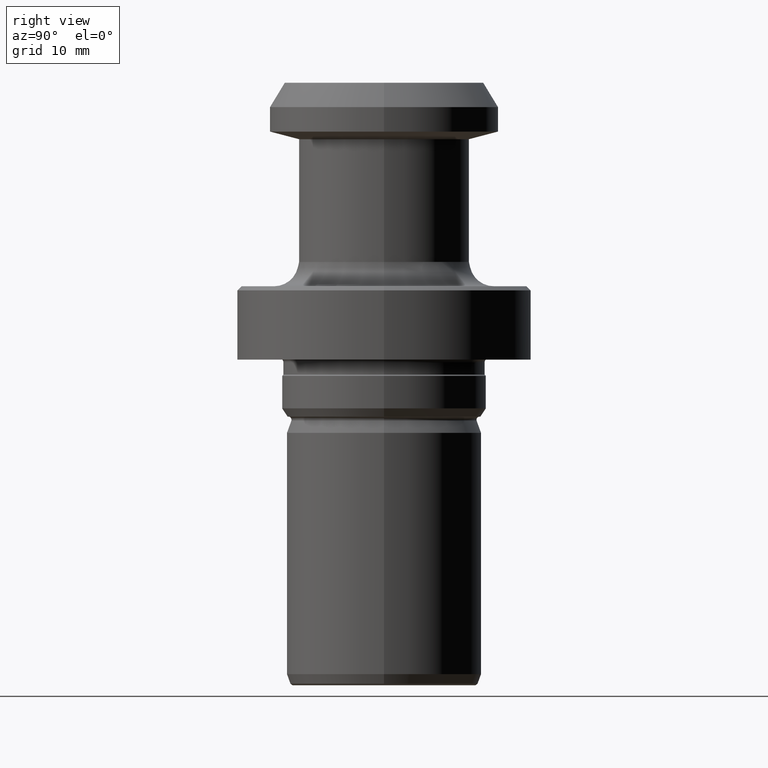
[diagram: clean part render]
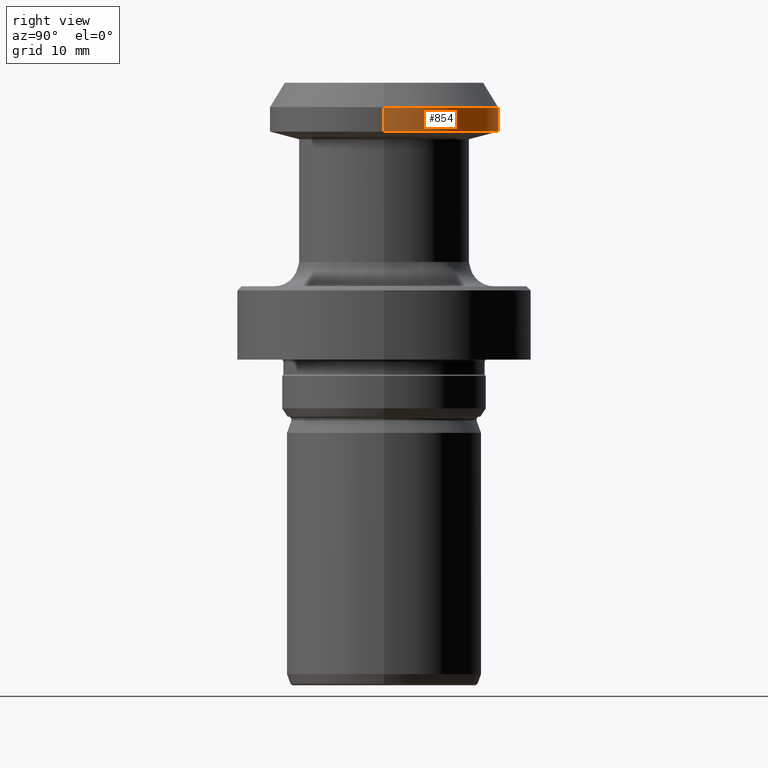
[diagram: same view with one face highlighted and labeled with its STEP entity id]
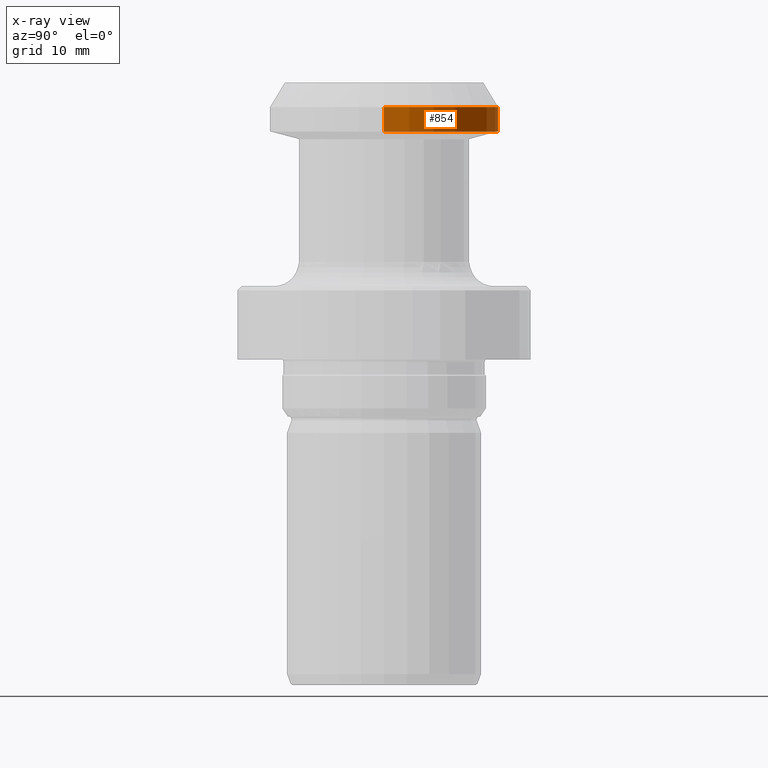
[diagram: x-ray of the same camera — body ghosted, the highlighted face saturated]
A machine part, right view. The second image highlights one B-rep face of the part: STEP entity #854.
The next image is the same camera in x-ray: the body ghosted, the highlighted face saturated — about 0% of this face is hidden behind the body in this view.
In plain terms, the highlighted cylindrical surface (partial cylindrical patch) has radius 14 mm, axis along (-0, -0, 1).
Its self-contained STEP definition (entity closure, byte-faithful):
#5 = VECTOR ( 'NONE', #274, 1000.000000000000000 ) ;
#11 = VECTOR ( 'NONE', #1059, 1000.000000000000000 ) ;
#13 = CARTESIAN_POINT ( 'NONE',  ( 0.0000000000000000000, 0.0000000000000000000, -2.999999999999999600 ) ) ;
#15 = ORIENTED_EDGE ( 'NONE', *, *, #63, .F. ) ;
#63 = EDGE_CURVE ( 'NONE', #402, #1030, #755, .T. ) ;
#107 = LINE ( 'NONE', #802, #5 ) ;
#193 = ORIENTED_EDGE ( 'NONE', *, *, #1135, .T. ) ;
#274 = DIRECTION ( 'NONE',  ( -0.0000000000000000000, -0.0000000000000000000, 1.000000000000000000 ) ) ;
#322 = EDGE_CURVE ( 'NONE', #1157, #534, #1093, .T. ) ;
#345 = DIRECTION ( 'NONE',  ( 1.000000000000000000, 0.0000000000000000000, 0.0000000000000000000 ) ) ;
#381 = DIRECTION ( 'NONE',  ( 1.000000000000000000, 0.0000000000000000000, 0.0000000000000000000 ) ) ;
#394 = AXIS2_PLACEMENT_3D ( 'NONE', #972, #879, #837 ) ;
#402 = VERTEX_POINT ( 'NONE', #660 ) ;
#434 = CARTESIAN_POINT ( 'NONE',  ( 0.0000000000000000000, 0.0000000000000000000, -6.000000000000000000 ) ) ;
#440 = CARTESIAN_POINT ( 'NONE',  ( 14.00000000000000000, 0.0000000000000000000, 0.0000000000000000000 ) ) ;
#444 = AXIS2_PLACEMENT_3D ( 'NONE', #434, #536, #345 ) ;
#510 = LINE ( 'NONE', #440, #11 ) ;
#534 = VERTEX_POINT ( 'NONE', #787 ) ;
#536 = DIRECTION ( 'NONE',  ( -0.0000000000000000000, -0.0000000000000000000, 1.000000000000000000 ) ) ;
#565 = DIRECTION ( 'NONE',  ( -0.0000000000000000000, -0.0000000000000000000, 1.000000000000000000 ) ) ;
#580 = ORIENTED_EDGE ( 'NONE', *, *, #322, .T. ) ;
#630 = CARTESIAN_POINT ( 'NONE',  ( 14.00000000000000000, 0.0000000000000000000, -6.000000000000000000 ) ) ;
#644 = CARTESIAN_POINT ( 'NONE',  ( -14.00000000000000000, 1.714505518806294600E-015, -2.999999999999999600 ) ) ;
#660 = CARTESIAN_POINT ( 'NONE',  ( 14.00000000000000000, 0.0000000000000000000, -2.999999999999999600 ) ) ;
#736 = EDGE_LOOP ( 'NONE', ( #580, #193, #15, #1052 ) ) ;
#755 = CIRCLE ( 'NONE', #823, 14.00000000000000000 ) ;
#787 = CARTESIAN_POINT ( 'NONE',  ( -14.00000000000000000, 1.714505518806294600E-015, -6.000000000000000000 ) ) ;
#802 = CARTESIAN_POINT ( 'NONE',  ( -14.00000000000000000, 1.714505518806294600E-015, 0.0000000000000000000 ) ) ;
#803 = FACE_OUTER_BOUND ( 'NONE', #736, .T. ) ;
#823 = AXIS2_PLACEMENT_3D ( 'NONE', #13, #565, #381 ) ;
#837 = DIRECTION ( 'NONE',  ( 1.000000000000000000, 0.0000000000000000000, 0.0000000000000000000 ) ) ;
#854 = ADVANCED_FACE ( 'NONE', ( #803 ), #1025, .T. ) ;
#879 = DIRECTION ( 'NONE',  ( -0.0000000000000000000, -0.0000000000000000000, 1.000000000000000000 ) ) ;
#972 = CARTESIAN_POINT ( 'NONE',  ( 0.0000000000000000000, 0.0000000000000000000, 0.0000000000000000000 ) ) ;
#1025 = CYLINDRICAL_SURFACE ( 'NONE', #394, 14.00000000000000000 ) ;
#1030 = VERTEX_POINT ( 'NONE', #644 ) ;
#1042 = EDGE_CURVE ( 'NONE', #1157, #402, #510, .T. ) ;
#1052 = ORIENTED_EDGE ( 'NONE', *, *, #1042, .F. ) ;
#1059 = DIRECTION ( 'NONE',  ( -0.0000000000000000000, -0.0000000000000000000, 1.000000000000000000 ) ) ;
#1093 = CIRCLE ( 'NONE', #444, 14.00000000000000000 ) ;
#1135 = EDGE_CURVE ( 'NONE', #534, #1030, #107, .T. ) ;
#1157 = VERTEX_POINT ( 'NONE', #630 ) ;